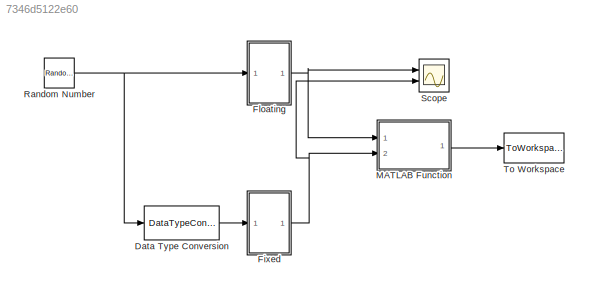
MODEL slx_7346d5122e60
KIND model
CONFIG AbsTol = auto
CONFIG EnableMultiTasking = off
CONFIG FixedStep = auto
CONFIG MaxStep = auto
CONFIG MinStep = auto
CONFIG RelTol = 1e-3
CONFIG SampleTimeConstraint = Unconstrained
CONFIG Solver = VariableStepAuto
CONFIG SolverName = VariableStepAuto
CONFIG StartTime = 0.0
CONFIG StopTime = 10.0
BLOCK [DataTypeConversion] Data Type Conversion
  OutDataTypeStr = fixdt(1,10,6)
  RndMeth = Floor
  SaturateOnIntegerOverflow = off
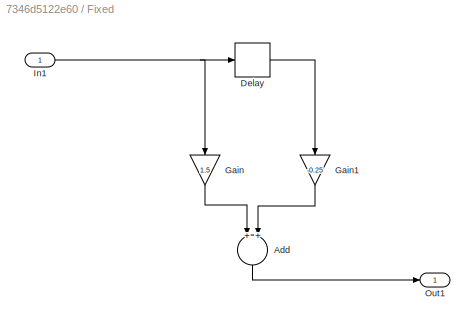
BLOCK [SubSystem] Fixed
  Ports = [1, 1]
  RequestExecContextInheritance = off
  Variant = off
BLOCK [Sum] Fixed/Add
  InputSameDT = off
  OutDataTypeStr = fixdt(1,10,6)
  Ports = [2, 1]
  SaturateOnIntegerOverflow = off
BLOCK [Delay] Fixed/Delay
  DelayLength = 1
  InputPortMap = u0
  Ports = [1, 1]
BLOCK [Gain] Fixed/Gain
  Gain = 1.5
  OutDataTypeStr = fixdt(1,10,6)
  ParamDataTypeStr = fixdt(0,2,1)
  SaturateOnIntegerOverflow = off
BLOCK [Gain] Fixed/Gain1
  Gain = -0.25
  OutDataTypeStr = fixdt(1,10,6)
  ParamDataTypeStr = fixdt(1,3,2)
  SaturateOnIntegerOverflow = off
BLOCK [Inport] Fixed/In1
  IconDisplay = Port number
BLOCK [Outport] Fixed/Out1
  IconDisplay = Port number
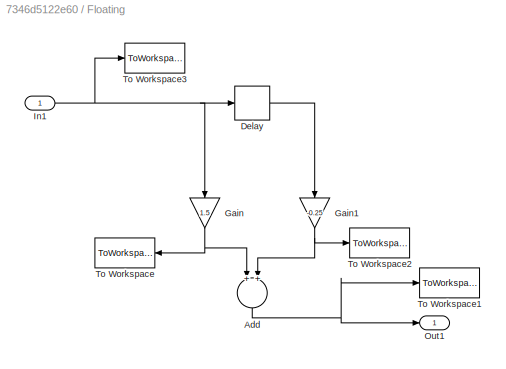
BLOCK [SubSystem] Floating
  Ports = [1, 1]
  RequestExecContextInheritance = off
  Variant = off
BLOCK [Sum] Floating/Add
  InputSameDT = off
  OutDataTypeStr = double
  Ports = [2, 1]
  SaturateOnIntegerOverflow = off
BLOCK [Delay] Floating/Delay
  DelayLength = 1
  InputPortMap = u0
  Ports = [1, 1]
BLOCK [Gain] Floating/Gain
  Gain = 1.5
  OutDataTypeStr = double
  ParamDataTypeStr = double
  SaturateOnIntegerOverflow = off
BLOCK [Gain] Floating/Gain1
  Gain = -0.25
  OutDataTypeStr = double
  ParamDataTypeStr = double
  SaturateOnIntegerOverflow = off
BLOCK [Inport] Floating/In1
  IconDisplay = Port number
BLOCK [Outport] Floating/Out1
  IconDisplay = Port number
BLOCK [ToWorkspace] Floating/To Workspace
  FixptAsFi = on
  MaxDataPoints = inf
  Ports = [1]
  SampleTime = -1
  Save2DSignal = 3-D array (concatenate along third dimension)
  SaveFormat = Timeseries
  VariableName = gain_plus
BLOCK [ToWorkspace] Floating/To Workspace1
  FixptAsFi = on
  MaxDataPoints = inf
  Ports = [1]
  SampleTime = -1
  Save2DSignal = 3-D array (concatenate along third dimension)
  SaveFormat = Timeseries
  VariableName = values
BLOCK [ToWorkspace] Floating/To Workspace2
  FixptAsFi = on
  MaxDataPoints = inf
  Ports = [1]
  SampleTime = -1
  Save2DSignal = 3-D array (concatenate along third dimension)
  SaveFormat = Timeseries
  VariableName = gain_minus
BLOCK [ToWorkspace] Floating/To Workspace3
  FixptAsFi = on
  MaxDataPoints = inf
  Ports = [1]
  SampleTime = -1
  Save2DSignal = 3-D array (concatenate along third dimension)
  SaveFormat = Timeseries
  VariableName = init_values
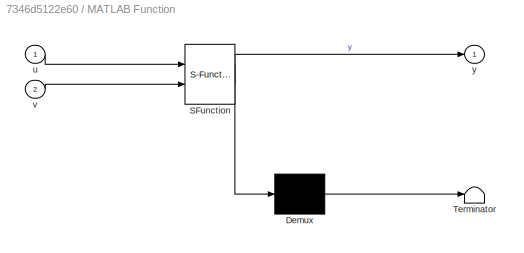
BLOCK [SubSystem] MATLAB Function
  ErrorFcn = Stateflow.Translate.translate
  PermitHierarchicalResolution = ExplicitOnly
  Ports = [2, 1]
  RequestExecContextInheritance = off
  SFBlockType = MATLAB Function
  TreatAsAtomicUnit = on
  Variant = off
BLOCK [Demux] MATLAB Function/ Demux 
  Outputs = 1
  Ports = [1, 1]
BLOCK [S-Function] MATLAB Function/ SFunction 
  EnableBusSupport = on
  FunctionName = sf_sfun
  PortCounts = [2 2]
  Ports = [2, 2]
  SFcnIsStateOwnerBlock = off
  SFunctionDeploymentMode = off
  Tag = Stateflow S-Function TapFilter 2
BLOCK [Terminator] MATLAB Function/ Terminator 
BLOCK [Inport] MATLAB Function/u
  IconDisplay = Port number
BLOCK [Inport] MATLAB Function/v
  IconDisplay = Port number
  Port = 2
BLOCK [Outport] MATLAB Function/y
  IconDisplay = Port number
BLOCK [RandomNumber] Random Number
  SampleTime = 0.1
BLOCK [Scope] Scope
  NumInputPorts = 2
  Ports = [2]
  ScopeSpecificationString = Simulink.scopes.TimeScopeBlockCfg('CurrentConfiguration', extmgr.ConfigurationSet(extmgr.Configuration('Core','General UI',true),extmgr.Configuration('Core','Source UI',true),extmgr.Configuration('Sources','WiredSimulink',true),extmgr.Configuration('Visuals','Time Domain',true,'SerializedDisplays',{struct('MinYLimReal','-5.04726','MaxYLimReal','4.86636','YLabelReal','','MinYLimMag','0.00000','MaxY...<+1436ch>
BLOCK [ToWorkspace] To Workspace
  FixptAsFi = on
  MaxDataPoints = inf
  Ports = [1]
  SampleTime = -1
  Save2DSignal = 3-D array (concatenate along third dimension)
  SaveFormat = Timeseries
  VariableName = error_output
LINE Data Type Conversion:1 -> Fixed:1
LINE Fixed/Add:1 -> Fixed/Out1:1
LINE Fixed/Delay:1 -> Fixed/Gain1:1
LINE Fixed/Gain1:1 -> Fixed/Add:2
LINE Fixed/Gain:1 -> Fixed/Add:1
NET Fixed/In1:1 -> Fixed/Delay:1, Fixed/Gain:1
NET Fixed:1 -> MATLAB Function:2, Scope:2
NET Floating/Add:1 -> Floating/Out1:1, Floating/To Workspace1:1
LINE Floating/Delay:1 -> Floating/Gain1:1
NET Floating/Gain1:1 -> Floating/Add:2, Floating/To Workspace2:1
NET Floating/Gain:1 -> Floating/Add:1, Floating/To Workspace:1
NET Floating/In1:1 -> Floating/Delay:1, Floating/Gain:1, Floating/To Workspace3:1
NET Floating:1 -> MATLAB Function:1, Scope:1
LINE MATLAB Function:1 -> To Workspace:1
NET Random Number:1 -> Data Type Conversion:1, Floating:1
note: NET lines group one-source signal fan-out (src -> all destinations, sorted); 1:1 wires keep LINE
CHART MATLAB Function states=1 transitions=1
  STATE_LABEL 'eML_blk_kernel()'
  STATE_LABEL 'SCRIPT:\nfunction y = fcn(u,v)\n\nu = double (u);\nv = double (v);\n\ny = abs(u - v);'
